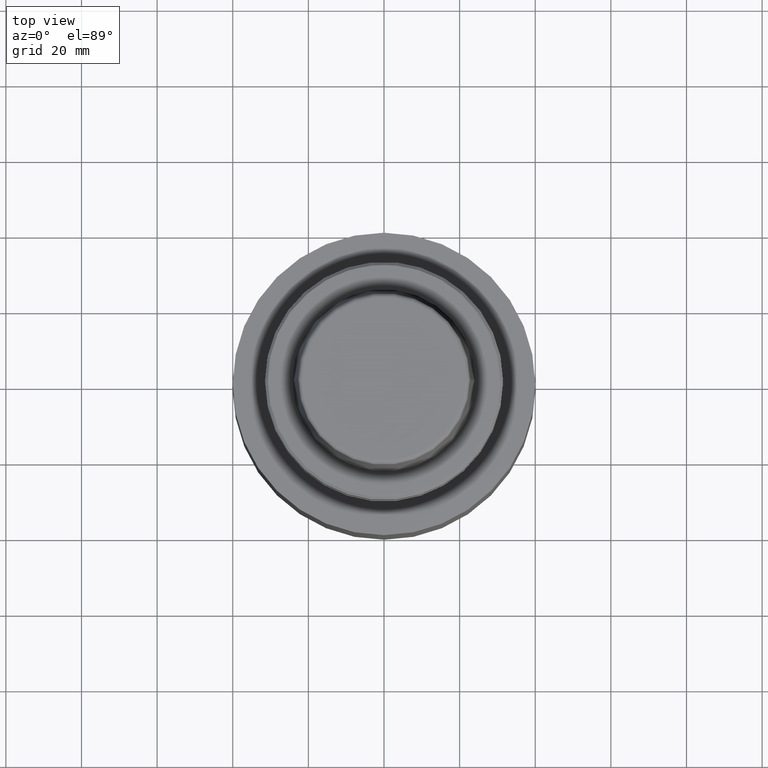
[diagram: clean part render]
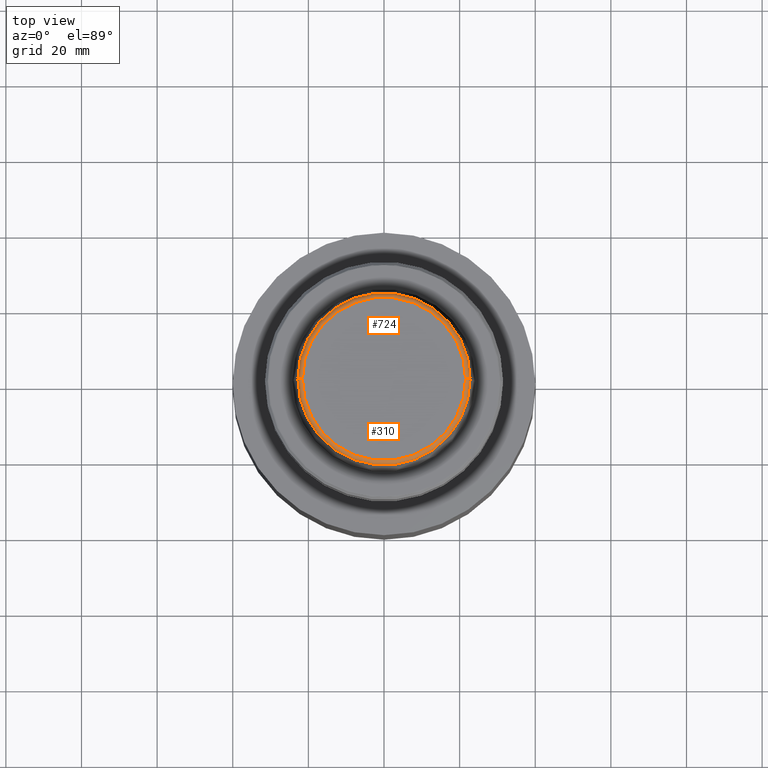
[diagram: same view with one multi-face feature highlighted, each face labeled with its STEP entity id]
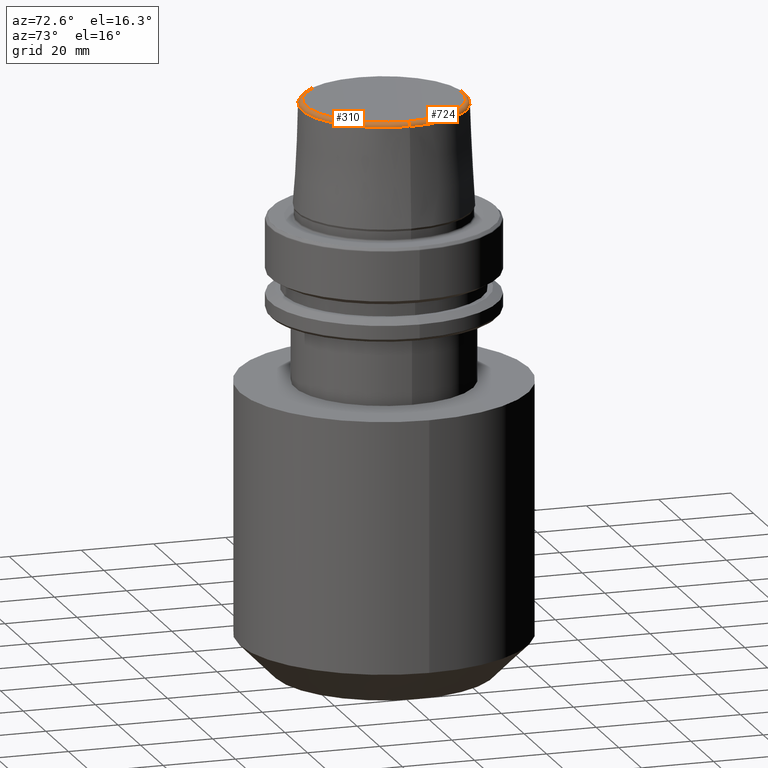
[diagram: same view with one multi-face feature highlighted, each face labeled with its STEP entity id]
A machine part, top view. The highlighted faces form ONE feature: a constant-radius fillet chain: 2 tangent blend faces with common blend radius 1.2 mm. The faces share edges in the B-rep.
A second angle (auxiliary view) of the same feature is appended — it is thin or edge-on in the first view.
Their STEP definitions:
[1] entity #724 (Torus):
#48 = ORIENTED_EDGE ( 'NONE', *, *, #1065, .F. ) ;
#51 = ORIENTED_EDGE ( 'NONE', *, *, #1161, .T. ) ;
#74 = DIRECTION ( 'NONE',  ( 1.000000000000000000, 0.0000000000000000000, 0.0000000000000000000 ) ) ;
#91 = DIRECTION ( 'NONE',  ( 0.0000000000000000000, -1.000000000000000000, 0.0000000000000000000 ) ) ;
#125 = VERTEX_POINT ( 'NONE', #1100 ) ;
#144 = CARTESIAN_POINT ( 'NONE',  ( -22.77957961851797100, 0.0000000000000000000, 30.76004333261571900 ) ) ;
#146 = EDGE_LOOP ( 'NONE', ( #789, #51, #48, #1207 ) ) ;
#160 = DIRECTION ( 'NONE',  ( 1.000000000000000000, 0.0000000000000000000, 0.0000000000000000000 ) ) ;
#182 = DIRECTION ( 'NONE',  ( 1.224646799147353200E-016, 1.000000000000000000, 0.0000000000000000000 ) ) ;
#188 = CARTESIAN_POINT ( 'NONE',  ( 21.58108272732117100, 0.0000000000000000000, 31.89999999999999900 ) ) ;
#208 = VERTEX_POINT ( 'NONE', #188 ) ;
#218 = DIRECTION ( 'NONE',  ( -1.000000000000000000, 1.224646799147353200E-016, 0.0000000000000000000 ) ) ;
#257 = DIRECTION ( 'NONE',  ( -0.0000000000000000000, -0.0000000000000000000, 1.000000000000000000 ) ) ;
#282 = CARTESIAN_POINT ( 'NONE',  ( 21.58108272732117100, 0.0000000000000000000, 30.69999999999999200 ) ) ;
#283 = EDGE_CURVE ( 'NONE', #394, #208, #676, .T. ) ;
#316 = CIRCLE ( 'NONE', #1053, 22.77957961851797100 ) ;
#368 = AXIS2_PLACEMENT_3D ( 'NONE', #282, #91, #401 ) ;
#394 = VERTEX_POINT ( 'NONE', #1094 ) ;
#401 = DIRECTION ( 'NONE',  ( 0.0000000000000000000, 0.0000000000000000000, -1.000000000000000000 ) ) ;
#488 = AXIS2_PLACEMENT_3D ( 'NONE', #744, #182, #218 ) ;
#527 = CARTESIAN_POINT ( 'NONE',  ( 0.0000000000000000000, 0.0000000000000000000, 30.69999999999999200 ) ) ;
#545 = CARTESIAN_POINT ( 'NONE',  ( 0.0000000000000000000, 0.0000000000000000000, 31.89999999999999900 ) ) ;
#645 = DIRECTION ( 'NONE',  ( -0.0000000000000000000, -0.0000000000000000000, 1.000000000000000000 ) ) ;
#676 = CIRCLE ( 'NONE', #368, 1.200000000000003100 ) ;
#724 = ADVANCED_FACE ( 'NONE', ( #1257 ), #1322, .T. ) ;
#744 = CARTESIAN_POINT ( 'NONE',  ( -21.58108272732117100, 2.642920388414810300E-015, 30.69999999999999200 ) ) ;
#761 = CIRCLE ( 'NONE', #488, 1.200000000000003100 ) ;
#778 = DIRECTION ( 'NONE',  ( 1.000000000000000000, 0.0000000000000000000, 0.0000000000000000000 ) ) ;
#789 = ORIENTED_EDGE ( 'NONE', *, *, #1136, .T. ) ;
#951 = AXIS2_PLACEMENT_3D ( 'NONE', #545, #257, #778 ) ;
#960 = AXIS2_PLACEMENT_3D ( 'NONE', #527, #1329, #74 ) ;
#1004 = CARTESIAN_POINT ( 'NONE',  ( 0.0000000000000000000, 0.0000000000000000000, 30.76004333261571900 ) ) ;
#1053 = AXIS2_PLACEMENT_3D ( 'NONE', #1004, #645, #160 ) ;
#1065 = EDGE_CURVE ( 'NONE', #208, #125, #1141, .T. ) ;
#1094 = CARTESIAN_POINT ( 'NONE',  ( 22.77957961851797100, 2.874852597157249900E-015, 30.76004333261571900 ) ) ;
#1100 = CARTESIAN_POINT ( 'NONE',  ( -21.58108272732117100, 2.716307157494421400E-015, 31.89999999999999900 ) ) ;
#1136 = EDGE_CURVE ( 'NONE', #394, #1283, #316, .T. ) ;
#1141 = CIRCLE ( 'NONE', #951, 21.58108272732117100 ) ;
#1161 = EDGE_CURVE ( 'NONE', #1283, #125, #761, .T. ) ;
#1207 = ORIENTED_EDGE ( 'NONE', *, *, #283, .F. ) ;
#1257 = FACE_OUTER_BOUND ( 'NONE', #146, .T. ) ;
#1283 = VERTEX_POINT ( 'NONE', #144 ) ;
#1322 = TOROIDAL_SURFACE ( 'NONE', #960, 21.58108272732117100, 1.200000000000003100 ) ;
#1329 = DIRECTION ( 'NONE',  ( -0.0000000000000000000, -0.0000000000000000000, 1.000000000000000000 ) ) ;
[2] entity #310 (Torus):
#9 = AXIS2_PLACEMENT_3D ( 'NONE', #833, #639, #117 ) ;
#50 = CIRCLE ( 'NONE', #9, 21.58108272732117100 ) ;
#83 = CARTESIAN_POINT ( 'NONE',  ( 0.0000000000000000000, 0.0000000000000000000, 30.69999999999999200 ) ) ;
#91 = DIRECTION ( 'NONE',  ( 0.0000000000000000000, -1.000000000000000000, 0.0000000000000000000 ) ) ;
#117 = DIRECTION ( 'NONE',  ( 1.000000000000000000, 0.0000000000000000000, 0.0000000000000000000 ) ) ;
#125 = VERTEX_POINT ( 'NONE', #1100 ) ;
#144 = CARTESIAN_POINT ( 'NONE',  ( -22.77957961851797100, 0.0000000000000000000, 30.76004333261571900 ) ) ;
#182 = DIRECTION ( 'NONE',  ( 1.224646799147353200E-016, 1.000000000000000000, 0.0000000000000000000 ) ) ;
#188 = CARTESIAN_POINT ( 'NONE',  ( 21.58108272732117100, 0.0000000000000000000, 31.89999999999999900 ) ) ;
#208 = VERTEX_POINT ( 'NONE', #188 ) ;
#218 = DIRECTION ( 'NONE',  ( -1.000000000000000000, 1.224646799147353200E-016, 0.0000000000000000000 ) ) ;
#282 = CARTESIAN_POINT ( 'NONE',  ( 21.58108272732117100, 0.0000000000000000000, 30.69999999999999200 ) ) ;
#283 = EDGE_CURVE ( 'NONE', #394, #208, #676, .T. ) ;
#292 = ORIENTED_EDGE ( 'NONE', *, *, #283, .T. ) ;
#305 = ORIENTED_EDGE ( 'NONE', *, *, #1161, .F. ) ;
#310 = ADVANCED_FACE ( 'NONE', ( #590 ), #473, .T. ) ;
#350 = ORIENTED_EDGE ( 'NONE', *, *, #1116, .F. ) ;
#368 = AXIS2_PLACEMENT_3D ( 'NONE', #282, #91, #401 ) ;
#394 = VERTEX_POINT ( 'NONE', #1094 ) ;
#401 = DIRECTION ( 'NONE',  ( 0.0000000000000000000, 0.0000000000000000000, -1.000000000000000000 ) ) ;
#473 = TOROIDAL_SURFACE ( 'NONE', #1217, 21.58108272732117100, 1.200000000000003100 ) ;
#488 = AXIS2_PLACEMENT_3D ( 'NONE', #744, #182, #218 ) ;
#547 = DIRECTION ( 'NONE',  ( -0.0000000000000000000, -0.0000000000000000000, 1.000000000000000000 ) ) ;
#590 = FACE_OUTER_BOUND ( 'NONE', #812, .T. ) ;
#605 = ORIENTED_EDGE ( 'NONE', *, *, #784, .T. ) ;
#639 = DIRECTION ( 'NONE',  ( -0.0000000000000000000, -0.0000000000000000000, 1.000000000000000000 ) ) ;
#676 = CIRCLE ( 'NONE', #368, 1.200000000000003100 ) ;
#744 = CARTESIAN_POINT ( 'NONE',  ( -21.58108272732117100, 2.642920388414810300E-015, 30.69999999999999200 ) ) ;
#761 = CIRCLE ( 'NONE', #488, 1.200000000000003100 ) ;
#784 = EDGE_CURVE ( 'NONE', #1283, #394, #1148, .T. ) ;
#812 = EDGE_LOOP ( 'NONE', ( #305, #605, #292, #350 ) ) ;
#833 = CARTESIAN_POINT ( 'NONE',  ( 0.0000000000000000000, 0.0000000000000000000, 31.89999999999999900 ) ) ;
#948 = DIRECTION ( 'NONE',  ( -0.0000000000000000000, -0.0000000000000000000, 1.000000000000000000 ) ) ;
#957 = DIRECTION ( 'NONE',  ( 1.000000000000000000, 0.0000000000000000000, 0.0000000000000000000 ) ) ;
#980 = CARTESIAN_POINT ( 'NONE',  ( 0.0000000000000000000, 0.0000000000000000000, 30.76004333261571900 ) ) ;
#1074 = DIRECTION ( 'NONE',  ( 1.000000000000000000, 0.0000000000000000000, 0.0000000000000000000 ) ) ;
#1094 = CARTESIAN_POINT ( 'NONE',  ( 22.77957961851797100, 2.874852597157249900E-015, 30.76004333261571900 ) ) ;
#1100 = CARTESIAN_POINT ( 'NONE',  ( -21.58108272732117100, 2.716307157494421400E-015, 31.89999999999999900 ) ) ;
#1116 = EDGE_CURVE ( 'NONE', #125, #208, #50, .T. ) ;
#1148 = CIRCLE ( 'NONE', #1289, 22.77957961851797100 ) ;
#1161 = EDGE_CURVE ( 'NONE', #1283, #125, #761, .T. ) ;
#1217 = AXIS2_PLACEMENT_3D ( 'NONE', #83, #948, #957 ) ;
#1283 = VERTEX_POINT ( 'NONE', #144 ) ;
#1289 = AXIS2_PLACEMENT_3D ( 'NONE', #980, #547, #1074 ) ;